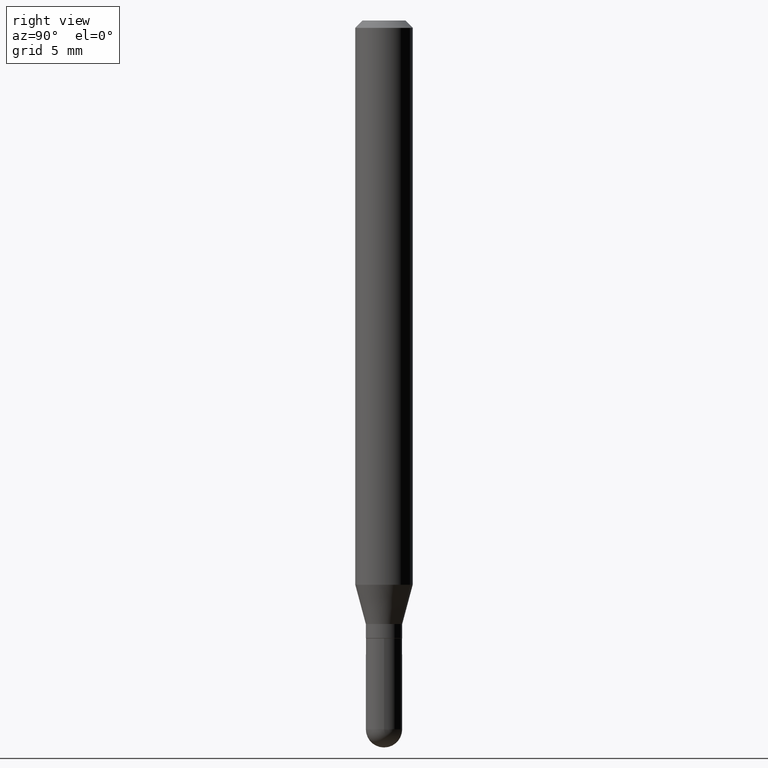
[diagram: clean part render]
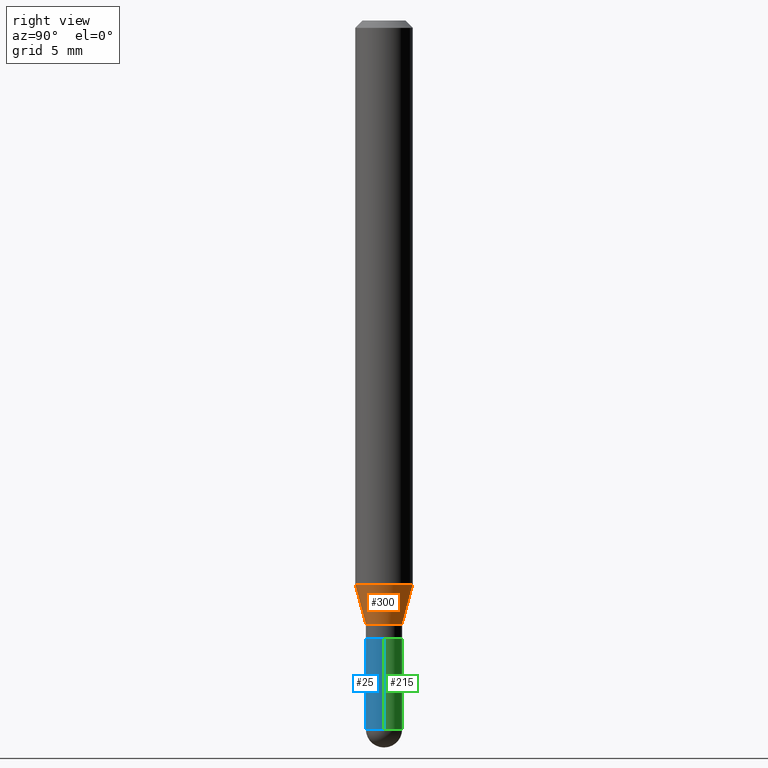
[diagram: same view with three faces highlighted in distinct colors, each labeled with its STEP entity id]
A machine part, right view with three faces highlighted in distinct colors.
Their STEP definitions:

[orange] entity #300 — the highlighted conical surface has half-angle 15 deg.
#5 = EDGE_LOOP ( 'NONE', ( #170, #238, #208, #399 ) ) ;
#23 = CARTESIAN_POINT ( 'NONE',  ( 3.426592343203375307E-16, 0.03739999999999558955, -1.242099999999999760 ) ) ;
#55 = DIRECTION ( 'NONE',  ( -2.445484334717468907E-29, 3.491459101101016620E-15, 1.000000000000000000 ) ) ;
#59 = CIRCLE ( 'NONE', #448, 0.05904999999999999832 ) ;
#64 = AXIS2_PLACEMENT_3D ( 'NONE', #401, #55, #357 ) ;
#91 = VERTEX_POINT ( 'NONE', #450 ) ;
#127 = VECTOR ( 'NONE', #416, 39.37007874015748143 ) ;
#148 = EDGE_CURVE ( 'NONE', #510, #394, #302, .T. ) ;
#164 = FACE_OUTER_BOUND ( 'NONE', #5, .T. ) ;
#170 = ORIENTED_EDGE ( 'NONE', *, *, #148, .T. ) ;
#201 = EDGE_CURVE ( 'NONE', #510, #91, #414, .T. ) ;
#208 = ORIENTED_EDGE ( 'NONE', *, *, #432, .F. ) ;
#210 = CARTESIAN_POINT ( 'NONE',  ( 2.657429831743073174E-16, 0.03739999999999558955, -1.242099999999999760 ) ) ;
#238 = ORIENTED_EDGE ( 'NONE', *, *, #370, .T. ) ;
#248 = CARTESIAN_POINT ( 'NONE',  ( 4.195754854663672017E-16, 0.05904999999999591132, -1.161301100016133736 ) ) ;
#258 = CARTESIAN_POINT ( 'NONE',  ( 3.037536092152567854E-29, -4.336741349477572225E-15, -1.242099999999999760 ) ) ;
#265 = DIRECTION ( 'NONE',  ( -2.445484334717468907E-29, 3.491459101101016620E-15, 1.000000000000000000 ) ) ;
#266 = CARTESIAN_POINT ( 'NONE',  ( -2.611628041454354374E-16, -0.03740000000000426317, -1.242099999999999760 ) ) ;
#295 = CARTESIAN_POINT ( 'NONE',  ( -2.611628041454354374E-16, -0.03740000000000426317, -1.242099999999999760 ) ) ;
#300 = ADVANCED_FACE ( 'NONE', ( #164 ), #329, .T. ) ;
#302 = CIRCLE ( 'NONE', #447, 0.03739999999999992636 ) ;
#323 = DIRECTION ( 'NONE',  ( 1.839019923739599921E-15, 0.2588190451025249028, 0.9659258262890670910 ) ) ;
#329 = CONICAL_SURFACE ( 'NONE', #64, 0.03739999999999992636, 0.2617993877991502405 ) ;
#334 = DIRECTION ( 'NONE',  ( -6.982962677686265922E-15, -1.000000000000000000, 4.626330217890369336E-15 ) ) ;
#339 = VERTEX_POINT ( 'NONE', #248 ) ;
#357 = DIRECTION ( 'NONE',  ( -6.982962677686265133E-15, -1.000000000000000000, 0.000000000000000000 ) ) ;
#370 = EDGE_CURVE ( 'NONE', #394, #339, #487, .T. ) ;
#371 = DIRECTION ( 'NONE',  ( -2.445484334717468907E-29, 3.491459101101016620E-15, 1.000000000000000000 ) ) ;
#394 = VERTEX_POINT ( 'NONE', #23 ) ;
#399 = ORIENTED_EDGE ( 'NONE', *, *, #201, .F. ) ;
#401 = CARTESIAN_POINT ( 'NONE',  ( 3.037536092152567854E-29, -4.336741349477572225E-15, -1.242099999999999760 ) ) ;
#414 = LINE ( 'NONE', #266, #127 ) ;
#416 = DIRECTION ( 'NONE',  ( -1.807323732225329745E-15, -0.2588190451025181305, 0.9659258262890689783 ) ) ;
#432 = EDGE_CURVE ( 'NONE', #91, #339, #59, .T. ) ;
#445 = CARTESIAN_POINT ( 'NONE',  ( 2.839943647979619308E-29, -4.054635294769952393E-15, -1.161301100016133736 ) ) ;
#447 = AXIS2_PLACEMENT_3D ( 'NONE', #258, #265, #497 ) ;
#448 = AXIS2_PLACEMENT_3D ( 'NONE', #445, #371, #334 ) ;
#450 = CARTESIAN_POINT ( 'NONE',  ( -4.123439461173457816E-16, -0.05905000000000408533, -1.161301100016133514 ) ) ;
#487 = LINE ( 'NONE', #210, #498 ) ;
#497 = DIRECTION ( 'NONE',  ( -6.982962677686265133E-15, -1.000000000000000000, 0.000000000000000000 ) ) ;
#498 = VECTOR ( 'NONE', #323, 39.37007874015748143 ) ;
#510 = VERTEX_POINT ( 'NONE', #295 ) ;

[blue] entity #25 — the highlighted cylindrical surface (edge-blend (fillet) strip) has radius 0.95 mm, axis along (-0, 0, 1).
#14 = DIRECTION ( 'NONE',  ( 1.000000000000000000, -6.982962677686276177E-15, 0.000000000000000000 ) ) ;
#16 = CARTESIAN_POINT ( 'NONE',  ( -0.03739999999999999575, 2.657429831742774393E-16, -1.839681723755334690E-30 ) ) ;
#25 = ADVANCED_FACE ( 'NONE', ( #438 ), #335, .T. ) ;
#54 = CARTESIAN_POINT ( 'NONE',  ( -2.611628041454307043E-16, -0.03740000000000509583, -1.458699999999999886 ) ) ;
#60 = LINE ( 'NONE', #361, #368 ) ;
#66 = AXIS2_PLACEMENT_3D ( 'NONE', #407, #260, #150 ) ;
#73 = EDGE_CURVE ( 'NONE', #175, #281, #187, .T. ) ;
#94 = DIRECTION ( 'NONE',  ( -2.445468806185136877E-29, 3.491481338843145188E-15, 1.000000000000000000 ) ) ;
#150 = DIRECTION ( 'NONE',  ( 1.000000000000000000, -6.982962677686266711E-15, 4.876176775795936353E-29 ) ) ;
#159 = CARTESIAN_POINT ( 'NONE',  ( 3.567205347582258439E-29, -5.093023828970496460E-15, -1.458699999999999886 ) ) ;
#171 = VECTOR ( 'NONE', #412, 39.37007874015748143 ) ;
#175 = VERTEX_POINT ( 'NONE', #192 ) ;
#187 = LINE ( 'NONE', #16, #171 ) ;
#188 = CIRCLE ( 'NONE', #381, 0.03739999999999999575 ) ;
#192 = CARTESIAN_POINT ( 'NONE',  ( -0.03739999999999999575, -4.500827340614384492E-15, -1.458699999999999886 ) ) ;
#222 = DIRECTION ( 'NONE',  ( -2.445468806185136597E-29, 3.491481338843145583E-15, 1.000000000000000000 ) ) ;
#227 = AXIS2_PLACEMENT_3D ( 'NONE', #483, #292, #444 ) ;
#234 = VERTEX_POINT ( 'NONE', #396 ) ;
#235 = DIRECTION ( 'NONE',  ( -2.445468806185136597E-29, 3.491481338843145583E-15, 1.000000000000000000 ) ) ;
#236 = VERTEX_POINT ( 'NONE', #308 ) ;
#259 = CIRCLE ( 'NONE', #511, 0.03739999999999999575 ) ;
#260 = DIRECTION ( 'NONE',  ( -2.445468806185136597E-29, 3.491481338843145583E-15, 1.000000000000000000 ) ) ;
#281 = VERTEX_POINT ( 'NONE', #461 ) ;
#292 = DIRECTION ( 'NONE',  ( -2.445468806185136597E-29, 3.491481338843145583E-15, 1.000000000000000000 ) ) ;
#294 = EDGE_CURVE ( 'NONE', #501, #234, #259, .T. ) ;
#304 = EDGE_CURVE ( 'NONE', #234, #236, #60, .T. ) ;
#308 = CARTESIAN_POINT ( 'NONE',  ( 0.03740000000000000269, -4.701279622752295282E-15, -1.271700000000000053 ) ) ;
#309 = ORIENTED_EDGE ( 'NONE', *, *, #392, .T. ) ;
#333 = ORIENTED_EDGE ( 'NONE', *, *, #294, .T. ) ;
#335 = CYLINDRICAL_SURFACE ( 'NONE', #66, 0.03739999999999999575 ) ;
#346 = CARTESIAN_POINT ( 'NONE',  ( 3.567205347582258439E-29, -5.093023828970496460E-15, -1.458699999999999886 ) ) ;
#361 = CARTESIAN_POINT ( 'NONE',  ( 0.03739999999999999575, -2.611628041454663509E-16, 1.823690114147680082E-30 ) ) ;
#368 = VECTOR ( 'NONE', #94, 39.37007874015748143 ) ;
#381 = AXIS2_PLACEMENT_3D ( 'NONE', #159, #222, #14 ) ;
#385 = DIRECTION ( 'NONE',  ( 1.000000000000000000, -6.982962677686276177E-15, 0.000000000000000000 ) ) ;
#387 = EDGE_CURVE ( 'NONE', #281, #236, #422, .T. ) ;
#392 = EDGE_CURVE ( 'NONE', #175, #501, #188, .T. ) ;
#396 = CARTESIAN_POINT ( 'NONE',  ( 0.03739999999999999575, -5.027733127934128282E-15, -1.458699999999999886 ) ) ;
#400 = EDGE_LOOP ( 'NONE', ( #512, #309, #333, #402, #431 ) ) ;
#402 = ORIENTED_EDGE ( 'NONE', *, *, #304, .T. ) ;
#407 = CARTESIAN_POINT ( 'NONE',  ( 0.000000000000000000, 0.000000000000000000, 0.000000000000000000 ) ) ;
#412 = DIRECTION ( 'NONE',  ( -2.445468806185136877E-29, 3.491481338843145188E-15, 1.000000000000000000 ) ) ;
#422 = CIRCLE ( 'NONE', #227, 0.03740000000000000269 ) ;
#431 = ORIENTED_EDGE ( 'NONE', *, *, #387, .F. ) ;
#438 = FACE_OUTER_BOUND ( 'NONE', #400, .T. ) ;
#444 = DIRECTION ( 'NONE',  ( 1.000000000000000000, -6.982962677686274599E-15, 0.000000000000000000 ) ) ;
#461 = CARTESIAN_POINT ( 'NONE',  ( -0.03740000000000000269, -4.500827340614384492E-15, -1.271700000000000053 ) ) ;
#483 = CARTESIAN_POINT ( 'NONE',  ( 3.109902680825638129E-29, -4.440116818606828093E-15, -1.271700000000000053 ) ) ;
#501 = VERTEX_POINT ( 'NONE', #54 ) ;
#511 = AXIS2_PLACEMENT_3D ( 'NONE', #346, #235, #385 ) ;
#512 = ORIENTED_EDGE ( 'NONE', *, *, #73, .F. ) ;

[green] entity #215 — the highlighted cylindrical surface (edge-blend (fillet) strip) has radius 0.95 mm, axis along (-0, 0, 1).
#13 = EDGE_CURVE ( 'NONE', #234, #160, #421, .T. ) ;
#16 = CARTESIAN_POINT ( 'NONE',  ( -0.03739999999999999575, 2.657429831742774393E-16, -1.839681723755334690E-30 ) ) ;
#19 = DIRECTION ( 'NONE',  ( -2.445468806185136597E-29, 3.491481338843145583E-15, 1.000000000000000000 ) ) ;
#27 = ORIENTED_EDGE ( 'NONE', *, *, #304, .F. ) ;
#33 = DIRECTION ( 'NONE',  ( -2.445468806185136597E-29, 3.491481338843145583E-15, 1.000000000000000000 ) ) ;
#45 = AXIS2_PLACEMENT_3D ( 'NONE', #229, #19, #108 ) ;
#60 = LINE ( 'NONE', #361, #368 ) ;
#73 = EDGE_CURVE ( 'NONE', #175, #281, #187, .T. ) ;
#74 = AXIS2_PLACEMENT_3D ( 'NONE', #382, #33, #203 ) ;
#85 = EDGE_LOOP ( 'NONE', ( #420, #224, #204, #27, #242 ) ) ;
#94 = DIRECTION ( 'NONE',  ( -2.445468806185136877E-29, 3.491481338843145188E-15, 1.000000000000000000 ) ) ;
#108 = DIRECTION ( 'NONE',  ( 1.000000000000000000, -6.982962677686276177E-15, 0.000000000000000000 ) ) ;
#112 = EDGE_CURVE ( 'NONE', #160, #175, #492, .T. ) ;
#134 = FACE_OUTER_BOUND ( 'NONE', #85, .T. ) ;
#137 = DIRECTION ( 'NONE',  ( -2.445468806185136597E-29, 3.491481338843145583E-15, 1.000000000000000000 ) ) ;
#153 = CARTESIAN_POINT ( 'NONE',  ( 2.657429831743130367E-16, 0.03739999999999490260, -1.458699999999999886 ) ) ;
#155 = CIRCLE ( 'NONE', #217, 0.03740000000000000269 ) ;
#160 = VERTEX_POINT ( 'NONE', #153 ) ;
#166 = EDGE_CURVE ( 'NONE', #236, #281, #155, .T. ) ;
#171 = VECTOR ( 'NONE', #412, 39.37007874015748143 ) ;
#175 = VERTEX_POINT ( 'NONE', #192 ) ;
#180 = AXIS2_PLACEMENT_3D ( 'NONE', #315, #137, #321 ) ;
#187 = LINE ( 'NONE', #16, #171 ) ;
#192 = CARTESIAN_POINT ( 'NONE',  ( -0.03739999999999999575, -4.500827340614384492E-15, -1.458699999999999886 ) ) ;
#203 = DIRECTION ( 'NONE',  ( 1.000000000000000000, -6.982962677686266711E-15, 4.876176775795936353E-29 ) ) ;
#204 = ORIENTED_EDGE ( 'NONE', *, *, #166, .F. ) ;
#215 = ADVANCED_FACE ( 'NONE', ( #134 ), #233, .T. ) ;
#217 = AXIS2_PLACEMENT_3D ( 'NONE', #305, #455, #301 ) ;
#224 = ORIENTED_EDGE ( 'NONE', *, *, #73, .T. ) ;
#229 = CARTESIAN_POINT ( 'NONE',  ( 3.567205347582258439E-29, -5.093023828970496460E-15, -1.458699999999999886 ) ) ;
#233 = CYLINDRICAL_SURFACE ( 'NONE', #74, 0.03739999999999999575 ) ;
#234 = VERTEX_POINT ( 'NONE', #396 ) ;
#236 = VERTEX_POINT ( 'NONE', #308 ) ;
#242 = ORIENTED_EDGE ( 'NONE', *, *, #13, .T. ) ;
#281 = VERTEX_POINT ( 'NONE', #461 ) ;
#301 = DIRECTION ( 'NONE',  ( 1.000000000000000000, -6.982962677686274599E-15, 0.000000000000000000 ) ) ;
#304 = EDGE_CURVE ( 'NONE', #234, #236, #60, .T. ) ;
#305 = CARTESIAN_POINT ( 'NONE',  ( 3.109902680825638129E-29, -4.440116818606828093E-15, -1.271700000000000053 ) ) ;
#308 = CARTESIAN_POINT ( 'NONE',  ( 0.03740000000000000269, -4.701279622752295282E-15, -1.271700000000000053 ) ) ;
#315 = CARTESIAN_POINT ( 'NONE',  ( 3.567205347582258439E-29, -5.093023828970496460E-15, -1.458699999999999886 ) ) ;
#321 = DIRECTION ( 'NONE',  ( 1.000000000000000000, -6.982962677686276177E-15, 0.000000000000000000 ) ) ;
#361 = CARTESIAN_POINT ( 'NONE',  ( 0.03739999999999999575, -2.611628041454663509E-16, 1.823690114147680082E-30 ) ) ;
#368 = VECTOR ( 'NONE', #94, 39.37007874015748143 ) ;
#382 = CARTESIAN_POINT ( 'NONE',  ( 0.000000000000000000, 0.000000000000000000, 0.000000000000000000 ) ) ;
#396 = CARTESIAN_POINT ( 'NONE',  ( 0.03739999999999999575, -5.027733127934128282E-15, -1.458699999999999886 ) ) ;
#412 = DIRECTION ( 'NONE',  ( -2.445468806185136877E-29, 3.491481338843145188E-15, 1.000000000000000000 ) ) ;
#420 = ORIENTED_EDGE ( 'NONE', *, *, #112, .T. ) ;
#421 = CIRCLE ( 'NONE', #180, 0.03739999999999999575 ) ;
#455 = DIRECTION ( 'NONE',  ( -2.445468806185136597E-29, 3.491481338843145583E-15, 1.000000000000000000 ) ) ;
#461 = CARTESIAN_POINT ( 'NONE',  ( -0.03740000000000000269, -4.500827340614384492E-15, -1.271700000000000053 ) ) ;
#492 = CIRCLE ( 'NONE', #45, 0.03739999999999999575 ) ;